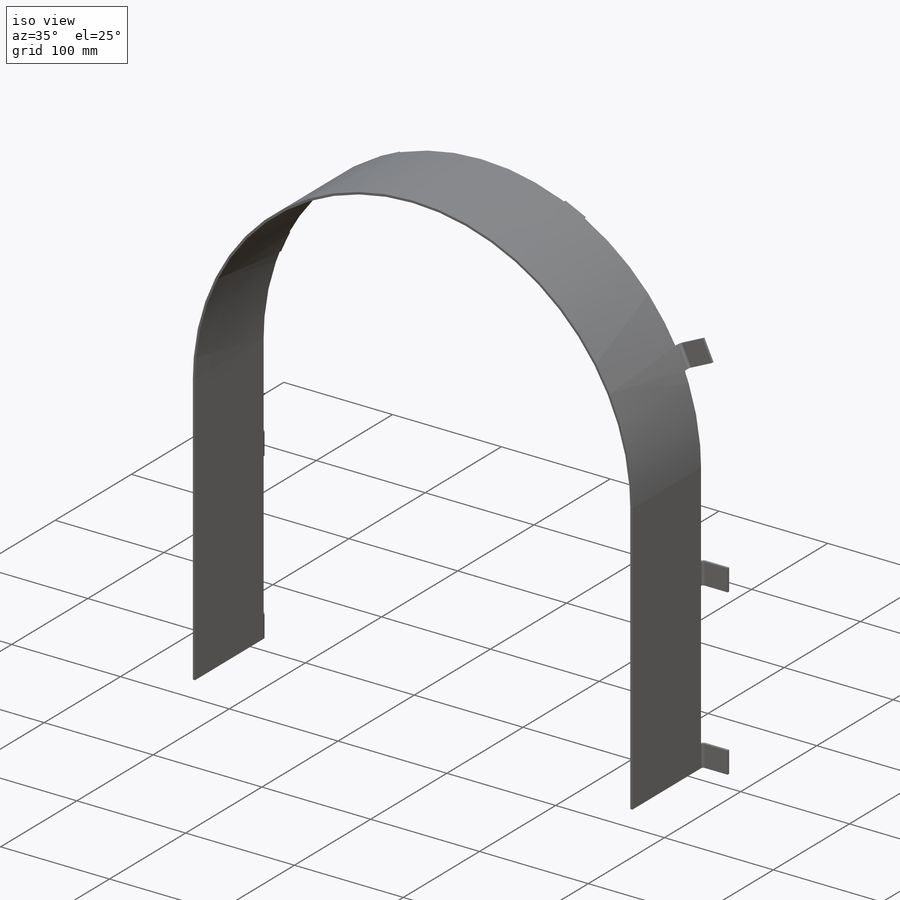
[diagram: iso view]
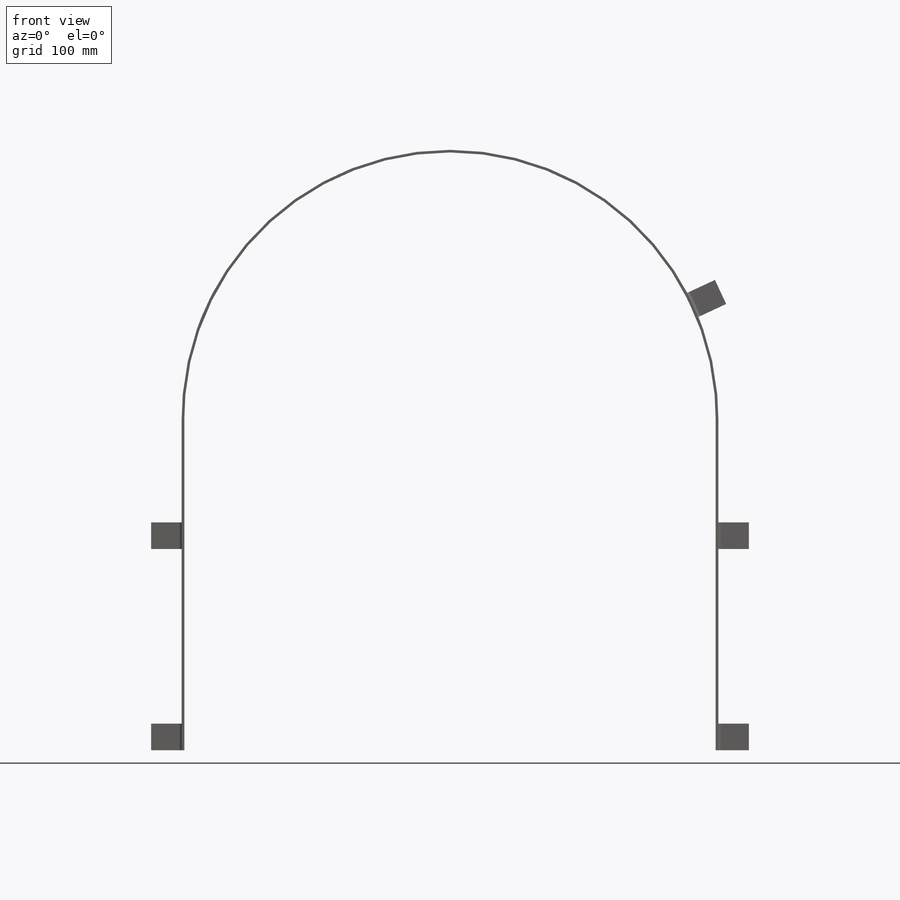
[diagram: front view]
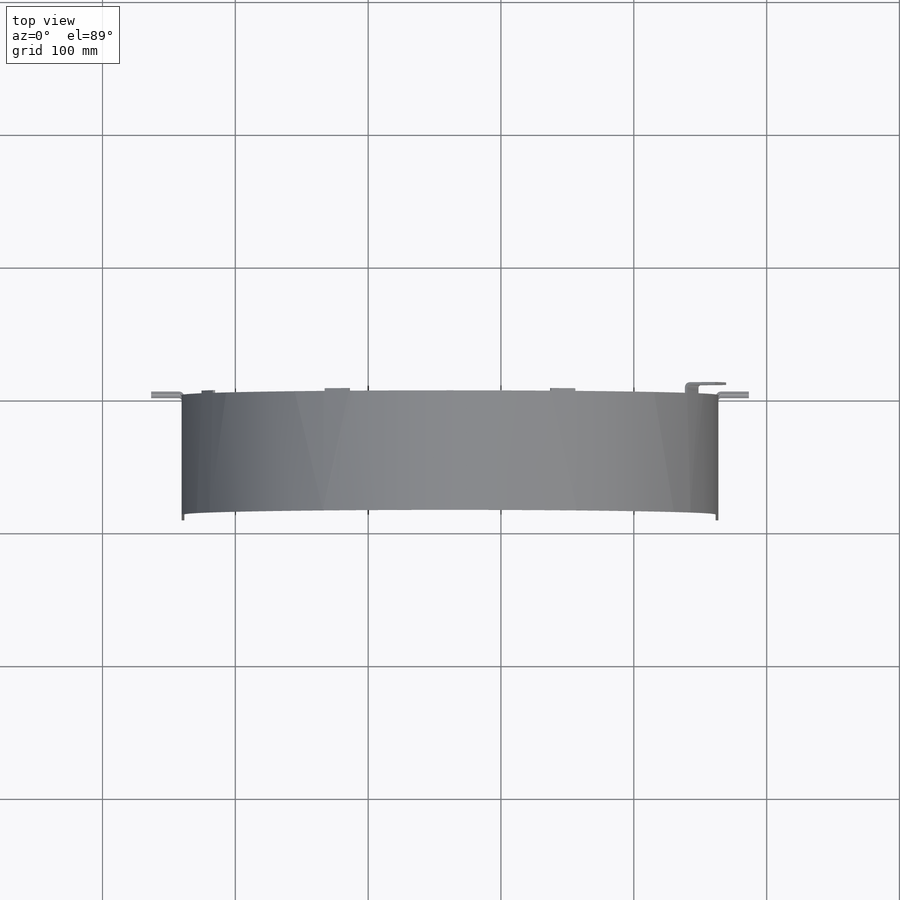
[diagram: top view]
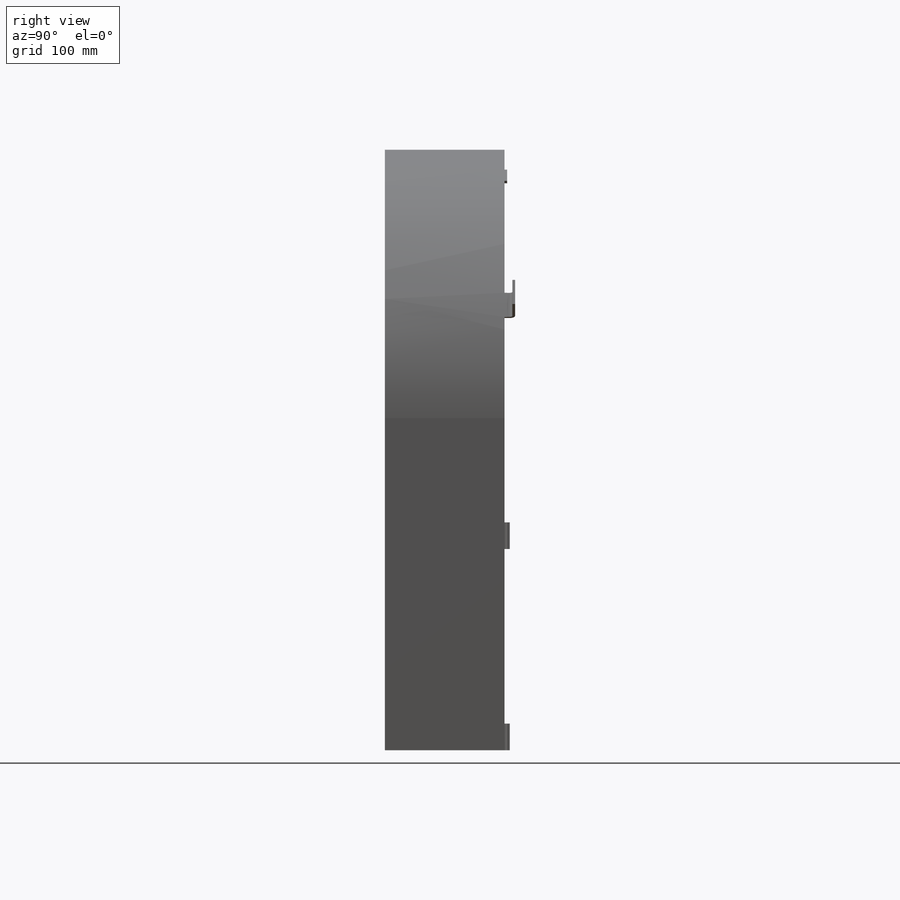
[diagram: right view]
SOLIDWORKS PART (.sldprt)
format: sldprt  version: not decoded by parser v0  size: 564,736 bytes
history: native  units: mm
features: sketch x17, plane x4, extrude x4, sheet_metal_op x4, fillet x2, material x1 + 6 further entries (+9 scaffold rows collapsed; 4 parser-record rows omitted)
feature tree (51):
  scaffold x9  (default folders/planes/origin — collapsed)
  material  "Material <nicht festgelegt>"
  "Zuschnittslistenelement2"
  "Zuschnittslistenelement3"
  plane  "Ebene vorne"
  plane  "Ebene oben"
  plane  "Ebene rechts"
  sketch  "Skizze1"  dims[D2=200.0mm D3=250.0mm D1=2.0mm]
  extrude  "Aufsatz-Linear austragen1"  Depth=90mm
  sketch  "Skizze2"  dims[c1.D1=202.0mm c2.D1=10.0deg c2.D2=~185.851567mm c3.D2=20.0deg c3.D3=~170.807401mm c4.D3=60.0deg c4.D4=20.0mm c4.D1=202.0mm c5.D1=25.0deg c5.D2=~183.074173mm c6.D2=65.0deg c6.D3=20.0mm]
  extrude  "Aufsatz-Linear austragen2"  Depth=2mm
  sketch  "Skizze3"  dims[D1=25.0mm]
  extrude  "Aufsatz-Linear austragen4"  Depth=2mm
  fillet  "Verrundung3"  Radius=2mm
  fillet  "Verrundung4"  Radius=4mm
  plane  "Ebene1"  Offset=1mm
  sketch  "Skizze4"  dims[c1.D1=~17.85732mm c1.D2=~4.166232mm c2.D1=2.0mm]
  extrude  "Aufsatz-Linear austragen5"  Depth=1mm
  sketch  "Skizze18"  dims[c1.D1=0.0mm c2.D1=4.0mm c2.D2=0.5 c2.D3=0.0mm c2.D6=500.0mm c3.D1=2.0mm c3.D4=90.0deg c3.D5=1.0 c3.D8=0.0mm c3.D9=0.0mm c3.Biegung-Rundung7=0.0 c4.D1=200.0mm c4.D4=180.0deg c4.D5=2.0 c4.D8=0.0mm c4.D9=0.0mm c4.Biegung-Rundung8=0.0 c5.D1=2.0mm c5.D4=90.0deg c5.D5=3.0 c5.D8=0.0mm c5.D9=0.0mm c5.Biegung-Rundung9=0.0 c6.D1=2.0mm c6.D4=90.0deg c6.D5=4.0 c6.D8=0.0mm c6.D9=0.0mm c6.Biegung-Rundung10=0.0 c7.D1=2.0mm c7.D4=90.0deg c7.D5=5.0 c7.D8=0.0mm c7.D9=0.0mm c8.D1=4.0mm c9.D1=4.0mm]
  sketch  "Skizze23"  dims[c1.Kantenbiegung1=0.0 c1.D1=2.0mm c1.D4=90.0deg c1.D5=1.0 c1.D8=1.0mm c1.D9=1.0mm c2.D1=2.0mm c2.D2=500.0mm c2.D3=0.0mm c2.D6=10.0mm c2.D7=23.0mm]
  sketch  "Skizze4<4>"
  sketch  "Biegung-Linien3"
  sketch  "Rahmen3"
  sheet_metal_op  "Blech(10)"
  "Abwicklung(10)"
  sketch  "Biegung-Linien4"
  sketch  "Rahmen4"
  parser-record x4  (decoder bookkeeping rows leaked as tree rows — omitted from the tree; the rows remain in map.json)
  sheet_metal_op  "Blech(14)"
  "Abwicklung(14)"
  sketch  "Biegung-Linien6"
  sketch  "Rahmen6"
  sheet_metal_op  "Blech(15)"
  "Abwicklung(14)"
  sketch  "Biegung-Linien6"
  sketch  "Rahmen6"
  sheet_metal_op  "Blech(16)"
  "Abwicklung(16)"
  sketch  "Biegung-Linien7"
  sketch  "Rahmen7"
decode coverage: 12 of 27 modeling features carry decoded parameters; 6 rows unclassified (native names shown)
note: ~ marks probable driven/reference dimensions
note: suppression state not decoded; provenance and decode notes live in map.json
